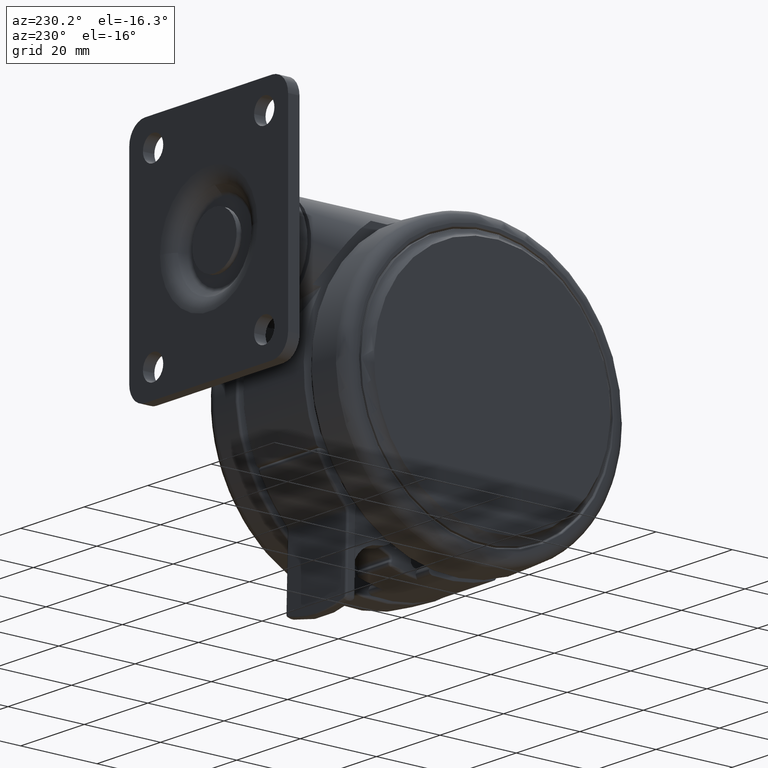
[diagram: clean part render]
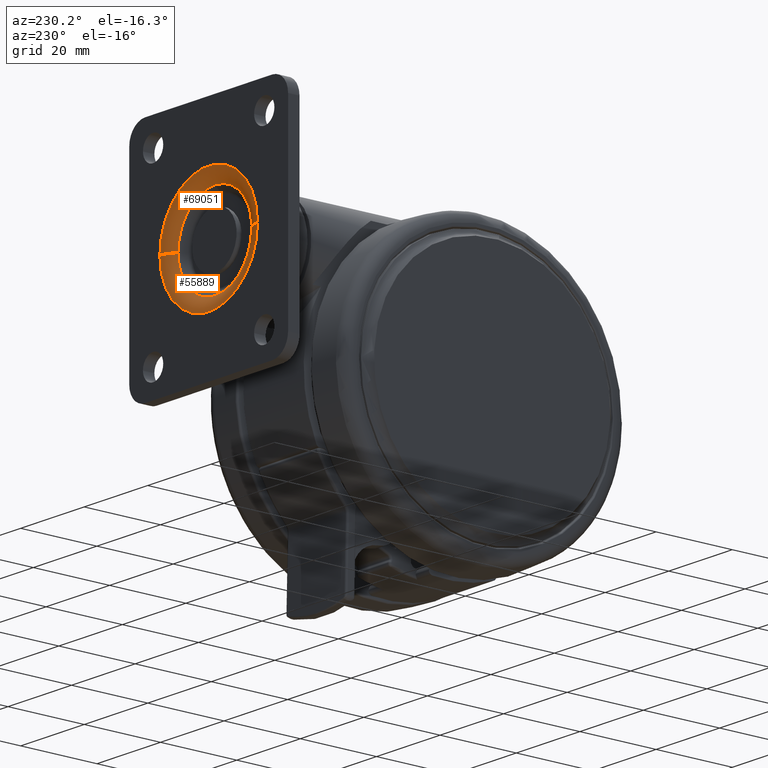
[diagram: same view with one multi-face feature highlighted, each face labeled with its STEP entity id]
A machine part, auxiliary view. The highlighted faces form ONE feature: a constant-radius fillet chain: 2 tangent blend faces with common blend radius 5 mm. The faces share edges in the B-rep.
Their STEP definitions:
[1] entity #69051 (Torus):
#1620 = AXIS2_PLACEMENT_3D ( 'NONE', #27058, #67242, #32833 ) ;
#3715 = CARTESIAN_POINT ( 'NONE',  ( -45.26868282280241100, -37.65735667491675500, -23.84999999999996200 ) ) ;
#4777 = DIRECTION ( 'NONE',  ( -0.2343494435091680600, 0.9721524254595794700, 0.0000000000000000000 ) ) ;
#5586 = CIRCLE ( 'NONE', #28254, 11.63926182942491700 ) ;
#6241 = CIRCLE ( 'NONE', #9492, 4.999999999999999100 ) ;
#6934 = CIRCLE ( 'NONE', #1620, 15.36630379274550000 ) ;
#9346 = CIRCLE ( 'NONE', #46335, 4.999999999999999100 ) ;
#9466 = DIRECTION ( 'NONE',  ( -0.2343494435091680600, 0.9721524254595794700, 0.0000000000000000000 ) ) ;
#9492 = AXIS2_PLACEMENT_3D ( 'NONE', #56111, #21801, #61934 ) ;
#11213 = ORIENTED_EDGE ( 'NONE', *, *, #26699, .F. ) ;
#12632 = EDGE_CURVE ( 'NONE', #37364, #72078, #5586, .T. ) ;
#17884 = CARTESIAN_POINT ( 'NONE',  ( -42.02845952901064700, -36.87626051565285900, -23.84999999999996200 ) ) ;
#21650 = CARTESIAN_POINT ( 'NONE',  ( -42.54102829021918100, -48.97249329295128500, -23.84999999999990500 ) ) ;
#21801 = DIRECTION ( 'NONE',  ( -0.2343494435091715000, 0.9721524254595788100, -1.224646799147353500E-016 ) ) ;
#21841 = DIRECTION ( 'NONE',  ( 0.2343494435091715000, -0.9721524254595788100, -1.296201079500455800E-044 ) ) ;
#24455 = TOROIDAL_SURFACE ( 'NONE', #32742, 15.36630379274550200, 5.000000000000000000 ) ;
#25084 = EDGE_CURVE ( 'NONE', #26778, #37364, #54824, .T. ) ;
#25239 = ORIENTED_EDGE ( 'NONE', *, *, #12632, .F. ) ;
#26699 = EDGE_CURVE ( 'NONE', #44063, #45520, #6934, .T. ) ;
#26778 = VERTEX_POINT ( 'NONE', #50433 ) ;
#27058 = CARTESIAN_POINT ( 'NONE',  ( -46.88922165630853600, -38.04800773319871600, -23.84999999999996200 ) ) ;
#28254 = AXIS2_PLACEMENT_3D ( 'NONE', #3715, #43871, #9466 ) ;
#30073 = CARTESIAN_POINT ( 'NONE',  ( -46.88922165630853600, -38.04800773319871600, -8.483696207254460800 ) ) ;
#32742 = AXIS2_PLACEMENT_3D ( 'NONE', #17884, #40480, #63801 ) ;
#32833 = DIRECTION ( 'NONE',  ( 0.0000000000000000000, 0.0000000000000000000, -1.000000000000000000 ) ) ;
#36115 = AXIS2_PLACEMENT_3D ( 'NONE', #73547, #39131, #4777 ) ;
#37364 = VERTEX_POINT ( 'NONE', #21650 ) ;
#38744 = EDGE_LOOP ( 'NONE', ( #42348, #25239, #45701, #69520, #11213 ) ) ;
#39131 = DIRECTION ( 'NONE',  ( -0.9721524254595795800, -0.2343494435091681100, 4.733165431326070100E-030 ) ) ;
#40480 = DIRECTION ( 'NONE',  ( 0.9721524254595788100, 0.2343494435091715000, -4.733165431326070100E-030 ) ) ;
#42348 = ORIENTED_EDGE ( 'NONE', *, *, #63565, .F. ) ;
#43871 = DIRECTION ( 'NONE',  ( -0.9721524254595795800, -0.2343494435091681100, 4.733165431326070100E-030 ) ) ;
#44063 = VERTEX_POINT ( 'NONE', #30073 ) ;
#44693 = CARTESIAN_POINT ( 'NONE',  ( -46.88922165630853600, -38.04800773319871600, -39.21630379274546400 ) ) ;
#45520 = VERTEX_POINT ( 'NONE', #44693 ) ;
#45701 = ORIENTED_EDGE ( 'NONE', *, *, #25084, .F. ) ;
#46335 = AXIS2_PLACEMENT_3D ( 'NONE', #56157, #21841, #61964 ) ;
#50433 = CARTESIAN_POINT ( 'NONE',  ( -45.26868282280241100, -37.65735667491675500, -35.48926182942488300 ) ) ;
#54824 = CIRCLE ( 'NONE', #36115, 11.63926182942491700 ) ;
#56111 = CARTESIAN_POINT ( 'NONE',  ( -42.02845952901064700, -36.87626051565285900, -8.483696207254460800 ) ) ;
#56157 = CARTESIAN_POINT ( 'NONE',  ( -42.02845952901064700, -36.87626051565285900, -39.21630379274546400 ) ) ;
#61934 = DIRECTION ( 'NONE',  ( -0.9721524254595787000, -0.2343494435091714700, 0.0000000000000000000 ) ) ;
#61964 = DIRECTION ( 'NONE',  ( 0.9721524254595787000, 0.2343494435091714700, 0.0000000000000000000 ) ) ;
#62138 = CARTESIAN_POINT ( 'NONE',  ( -45.26868282280241100, -37.65735667491675500, -12.21073817057503400 ) ) ;
#63565 = EDGE_CURVE ( 'NONE', #72078, #44063, #6241, .T. ) ;
#63801 = DIRECTION ( 'NONE',  ( -4.601358254165072900E-030, -1.109214684868112400E-030, -1.000000000000000000 ) ) ;
#67242 = DIRECTION ( 'NONE',  ( 0.9721524254595788100, 0.2343494435091715000, -4.733165431326070100E-030 ) ) ;
#68032 = EDGE_CURVE ( 'NONE', #26778, #45520, #9346, .T. ) ;
#68441 = FACE_OUTER_BOUND ( 'NONE', #38744, .T. ) ;
#69051 = ADVANCED_FACE ( 'NONE', ( #68441 ), #24455, .T. ) ;
#69520 = ORIENTED_EDGE ( 'NONE', *, *, #68032, .T. ) ;
#72078 = VERTEX_POINT ( 'NONE', #62138 ) ;
#73547 = CARTESIAN_POINT ( 'NONE',  ( -45.26868282280241100, -37.65735667491675500, -23.84999999999996200 ) ) ;
[2] entity #55889 (Torus):
#646 = ORIENTED_EDGE ( 'NONE', *, *, #2882, .F. ) ;
#1426 = DIRECTION ( 'NONE',  ( 0.0000000000000000000, 0.0000000000000000000, -1.000000000000000000 ) ) ;
#2769 = VERTEX_POINT ( 'NONE', #59475 ) ;
#2882 = EDGE_CURVE ( 'NONE', #2769, #26778, #11315, .T. ) ;
#5231 = AXIS2_PLACEMENT_3D ( 'NONE', #53047, #64311, #66704 ) ;
#6025 = DIRECTION ( 'NONE',  ( -0.9721524254595795800, -0.2343494435091681100, 4.733165431326070100E-030 ) ) ;
#6241 = CIRCLE ( 'NONE', #9492, 4.999999999999999100 ) ;
#6250 = FACE_OUTER_BOUND ( 'NONE', #61588, .T. ) ;
#9346 = CIRCLE ( 'NONE', #46335, 4.999999999999999100 ) ;
#9492 = AXIS2_PLACEMENT_3D ( 'NONE', #56111, #21801, #61934 ) ;
#9813 = AXIS2_PLACEMENT_3D ( 'NONE', #40384, #6025, #46162 ) ;
#11315 = CIRCLE ( 'NONE', #58963, 11.63926182942491700 ) ;
#20826 = CARTESIAN_POINT ( 'NONE',  ( -45.26868282280241100, -37.65735667491675500, -23.84999999999996200 ) ) ;
#21801 = DIRECTION ( 'NONE',  ( -0.2343494435091715000, 0.9721524254595788100, -1.224646799147353500E-016 ) ) ;
#21841 = DIRECTION ( 'NONE',  ( 0.2343494435091715000, -0.9721524254595788100, -1.296201079500455800E-044 ) ) ;
#23291 = TOROIDAL_SURFACE ( 'NONE', #5231, 15.36630379274550200, 5.000000000000000000 ) ;
#26324 = CIRCLE ( 'NONE', #9813, 11.63926182942491700 ) ;
#26549 = DIRECTION ( 'NONE',  ( -0.2343494435091680600, 0.9721524254595794700, 0.0000000000000000000 ) ) ;
#26778 = VERTEX_POINT ( 'NONE', #50433 ) ;
#29640 = ORIENTED_EDGE ( 'NONE', *, *, #60910, .F. ) ;
#30073 = CARTESIAN_POINT ( 'NONE',  ( -46.88922165630853600, -38.04800773319871600, -8.483696207254460800 ) ) ;
#35787 = DIRECTION ( 'NONE',  ( 0.9721524254595788100, 0.2343494435091715000, -4.733165431326070100E-030 ) ) ;
#40384 = CARTESIAN_POINT ( 'NONE',  ( -45.26868282280241100, -37.65735667491675500, -23.84999999999996200 ) ) ;
#44063 = VERTEX_POINT ( 'NONE', #30073 ) ;
#44693 = CARTESIAN_POINT ( 'NONE',  ( -46.88922165630853600, -38.04800773319871600, -39.21630379274546400 ) ) ;
#45520 = VERTEX_POINT ( 'NONE', #44693 ) ;
#46162 = DIRECTION ( 'NONE',  ( -0.2343494435091680600, 0.9721524254595794700, 0.0000000000000000000 ) ) ;
#46335 = AXIS2_PLACEMENT_3D ( 'NONE', #56157, #21841, #61964 ) ;
#50433 = CARTESIAN_POINT ( 'NONE',  ( -45.26868282280241100, -37.65735667491675500, -35.48926182942488300 ) ) ;
#50901 = ORIENTED_EDGE ( 'NONE', *, *, #68032, .F. ) ;
#53047 = CARTESIAN_POINT ( 'NONE',  ( -42.02845952901064700, -36.87626051565285900, -23.84999999999996200 ) ) ;
#55889 = ADVANCED_FACE ( 'NONE', ( #6250 ), #23291, .T. ) ;
#56111 = CARTESIAN_POINT ( 'NONE',  ( -42.02845952901064700, -36.87626051565285900, -8.483696207254460800 ) ) ;
#56157 = CARTESIAN_POINT ( 'NONE',  ( -42.02845952901064700, -36.87626051565285900, -39.21630379274546400 ) ) ;
#57496 = ORIENTED_EDGE ( 'NONE', *, *, #63565, .T. ) ;
#57781 = ORIENTED_EDGE ( 'NONE', *, *, #61359, .F. ) ;
#58583 = CIRCLE ( 'NONE', #66082, 15.36630379274550000 ) ;
#58963 = AXIS2_PLACEMENT_3D ( 'NONE', #20826, #60965, #26549 ) ;
#59475 = CARTESIAN_POINT ( 'NONE',  ( -47.99633735538564800, -26.34222005688218700, -23.84999999999990500 ) ) ;
#60910 = EDGE_CURVE ( 'NONE', #72078, #2769, #26324, .T. ) ;
#60965 = DIRECTION ( 'NONE',  ( -0.9721524254595795800, -0.2343494435091681100, 4.733165431326070100E-030 ) ) ;
#61359 = EDGE_CURVE ( 'NONE', #45520, #44063, #58583, .T. ) ;
#61588 = EDGE_LOOP ( 'NONE', ( #29640, #57496, #57781, #50901, #646 ) ) ;
#61934 = DIRECTION ( 'NONE',  ( -0.9721524254595787000, -0.2343494435091714700, 0.0000000000000000000 ) ) ;
#61964 = DIRECTION ( 'NONE',  ( 0.9721524254595787000, 0.2343494435091714700, 0.0000000000000000000 ) ) ;
#62138 = CARTESIAN_POINT ( 'NONE',  ( -45.26868282280241100, -37.65735667491675500, -12.21073817057503400 ) ) ;
#63565 = EDGE_CURVE ( 'NONE', #72078, #44063, #6241, .T. ) ;
#64311 = DIRECTION ( 'NONE',  ( 0.9721524254595788100, 0.2343494435091715000, -4.733165431326070100E-030 ) ) ;
#66082 = AXIS2_PLACEMENT_3D ( 'NONE', #70164, #35787, #1426 ) ;
#66704 = DIRECTION ( 'NONE',  ( -4.601358254165072900E-030, -1.109214684868112400E-030, -1.000000000000000000 ) ) ;
#68032 = EDGE_CURVE ( 'NONE', #26778, #45520, #9346, .T. ) ;
#70164 = CARTESIAN_POINT ( 'NONE',  ( -46.88922165630853600, -38.04800773319871600, -23.84999999999996200 ) ) ;
#72078 = VERTEX_POINT ( 'NONE', #62138 ) ;